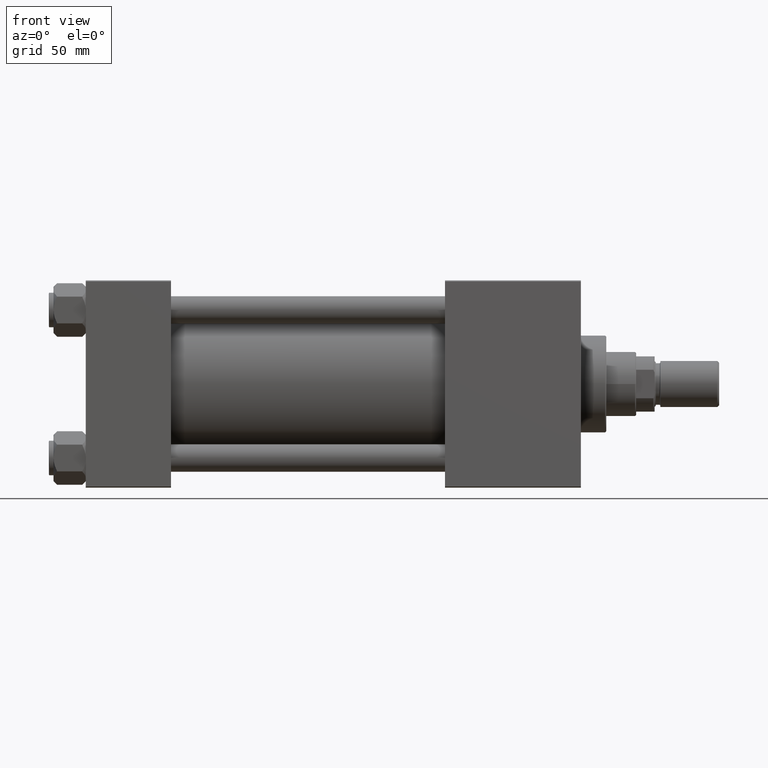
[diagram: clean part render]
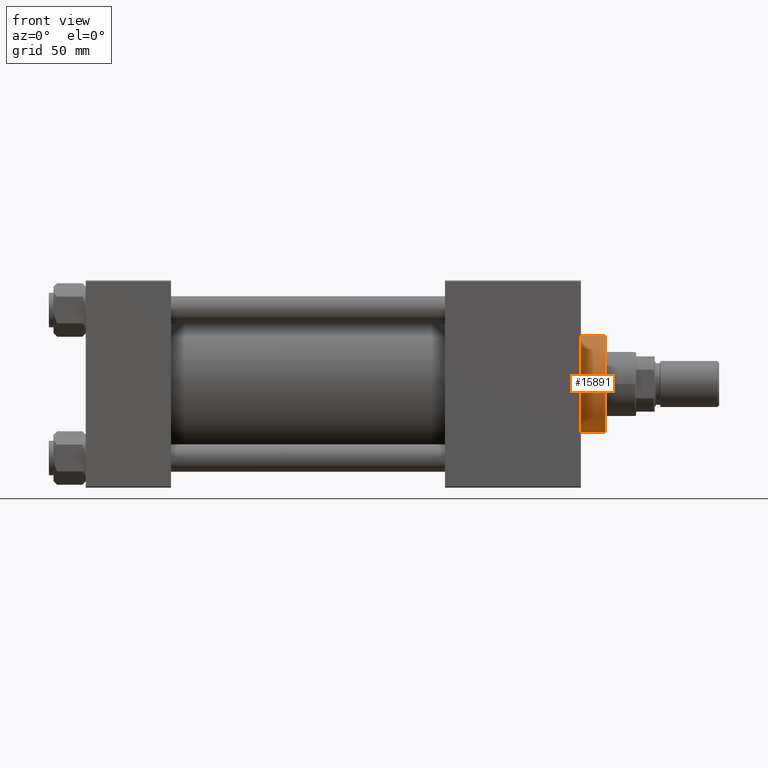
[diagram: same view with one face highlighted and labeled with its STEP entity id]
A machine part, front view. The second image highlights one B-rep face of the part: STEP entity #15891.
In plain terms, the highlighted cylindrical surface (partial cylindrical patch) has radius 21 mm, axis along (-1, -0, -0).
Its self-contained STEP definition (entity closure, byte-faithful):
#2036 = ORIENTED_EDGE ( 'NONE', *, *, #14223, .T. ) ;
#2218 = VECTOR ( 'NONE', #8804, 1000.000000000000000 ) ;
#3514 = CARTESIAN_POINT ( 'NONE',  ( 21.00000000000000000, 2.571758278209441661E-15, 28.69999999999999929 ) ) ;
#4487 = VERTEX_POINT ( 'NONE', #29669 ) ;
#7751 = CARTESIAN_POINT ( 'NONE',  ( 0.000000000000000000, 0.000000000000000000, 39.69999999999999574 ) ) ;
#8804 = DIRECTION ( 'NONE',  ( -0.000000000000000000, -0.000000000000000000, -1.000000000000000000 ) ) ;
#11344 = CARTESIAN_POINT ( 'NONE',  ( 0.000000000000000000, 0.000000000000000000, 28.69999999999999929 ) ) ;
#11539 = CARTESIAN_POINT ( 'NONE',  ( -21.00000000000000000, 0.000000000000000000, 39.19999999999999574 ) ) ;
#11877 = DIRECTION ( 'NONE',  ( -1.000000000000000000, 0.000000000000000000, 0.000000000000000000 ) ) ;
#13972 = DIRECTION ( 'NONE',  ( -0.000000000000000000, -0.000000000000000000, -1.000000000000000000 ) ) ;
#14223 = EDGE_CURVE ( 'NONE', #49224, #22712, #27367, .T. ) ;
#14283 = VECTOR ( 'NONE', #13972, 1000.000000000000000 ) ;
#14523 = CARTESIAN_POINT ( 'NONE',  ( -21.00000000000000000, 0.000000000000000000, 28.69999999999999929 ) ) ;
#14967 = DIRECTION ( 'NONE',  ( 0.000000000000000000, 0.000000000000000000, 1.000000000000000000 ) ) ;
#15476 = FACE_OUTER_BOUND ( 'NONE', #24137, .T. ) ;
#15891 = ADVANCED_FACE ( 'NONE', ( #15476 ), #31127, .T. ) ;
#16700 = AXIS2_PLACEMENT_3D ( 'NONE', #11344, #14967, #27021 ) ;
#19433 = CARTESIAN_POINT ( 'NONE',  ( 0.000000000000000000, 0.000000000000000000, 39.19999999999999574 ) ) ;
#20409 = EDGE_CURVE ( 'NONE', #22536, #49224, #44007, .T. ) ;
#20668 = ORIENTED_EDGE ( 'NONE', *, *, #42138, .F. ) ;
#22536 = VERTEX_POINT ( 'NONE', #11539 ) ;
#22562 = DIRECTION ( 'NONE',  ( 1.000000000000000000, 0.000000000000000000, 0.000000000000000000 ) ) ;
#22712 = VERTEX_POINT ( 'NONE', #3514 ) ;
#23429 = DIRECTION ( 'NONE',  ( -0.000000000000000000, -0.000000000000000000, -1.000000000000000000 ) ) ;
#24137 = EDGE_LOOP ( 'NONE', ( #20668, #32273, #24939, #2036 ) ) ;
#24939 = ORIENTED_EDGE ( 'NONE', *, *, #20409, .T. ) ;
#27021 = DIRECTION ( 'NONE',  ( 1.000000000000000000, 0.000000000000000000, 0.000000000000000000 ) ) ;
#27156 = DIRECTION ( 'NONE',  ( 0.000000000000000000, 0.000000000000000000, -1.000000000000000000 ) ) ;
#27367 = CIRCLE ( 'NONE', #16700, 21.00000000000000000 ) ;
#29669 = CARTESIAN_POINT ( 'NONE',  ( 21.00000000000000000, 2.571758278209441661E-15, 39.19999999999999574 ) ) ;
#31127 = CYLINDRICAL_SURFACE ( 'NONE', #44631, 21.00000000000000000 ) ;
#32273 = ORIENTED_EDGE ( 'NONE', *, *, #48833, .T. ) ;
#33999 = LINE ( 'NONE', #38349, #14283 ) ;
#38349 = CARTESIAN_POINT ( 'NONE',  ( 21.00000000000000000, 2.571758278209441661E-15, 39.69999999999999574 ) ) ;
#39354 = CARTESIAN_POINT ( 'NONE',  ( -21.00000000000000000, 0.000000000000000000, 39.69999999999999574 ) ) ;
#42138 = EDGE_CURVE ( 'NONE', #4487, #22712, #33999, .T. ) ;
#42357 = AXIS2_PLACEMENT_3D ( 'NONE', #19433, #27156, #22562 ) ;
#43993 = CIRCLE ( 'NONE', #42357, 21.00000000000000000 ) ;
#44007 = LINE ( 'NONE', #39354, #2218 ) ;
#44631 = AXIS2_PLACEMENT_3D ( 'NONE', #7751, #23429, #11877 ) ;
#48833 = EDGE_CURVE ( 'NONE', #4487, #22536, #43993, .T. ) ;
#49224 = VERTEX_POINT ( 'NONE', #14523 ) ;